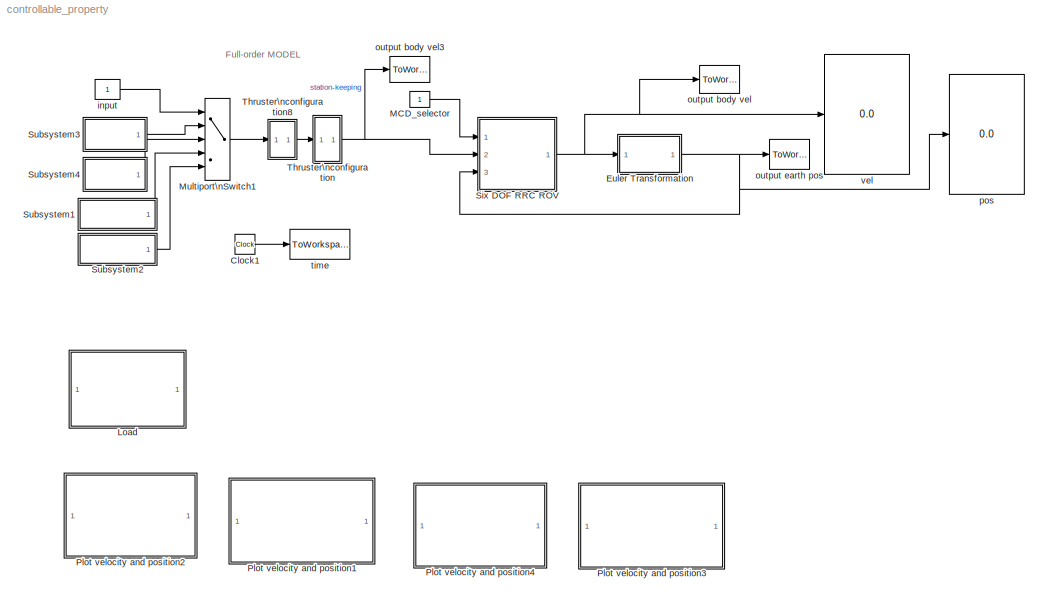
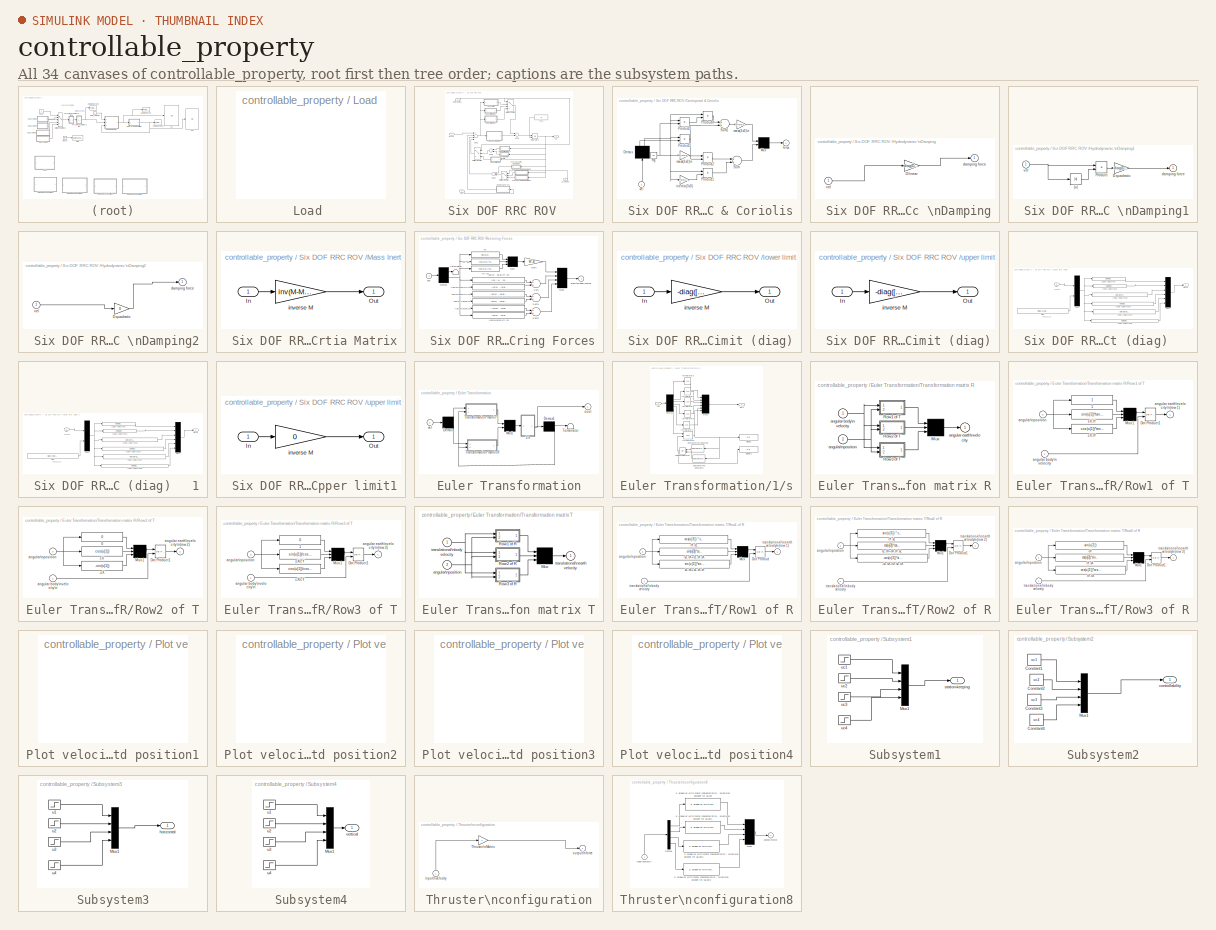
[diagram: thumbnail index - all 34 canvases of the model, root first then tree order]
MODEL controllable_property
KIND model
BLOCK [SubSystem]  Load  
  AncestorBlock = rov_design_analysis/ROV Controller\nDesign\nApplications/ Load RRCROV2 parameters
  MaskDisplay = disp('Double-click \\n to \\n Load the\\n RRCROV\\n parameters')
  MaskIconFrame = on
  MaskIconOpaque = on
  MaskIconRotate = none
  MaskIconUnits = autoscale
  MinAlgLoopOccurrences = off
  OpenFcn = \nclc                                                  \ncd <path> ;\nload rrcrovf;                                        \ncd <path> ;
  Ports = []
  RTWSystemCode = Auto
  TreatAsAtomicUnit = off
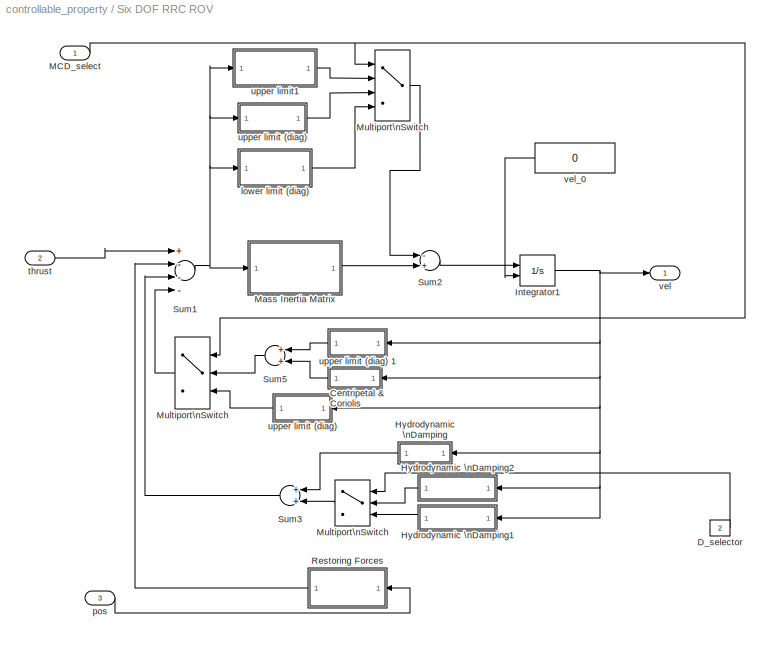
BLOCK [SubSystem]  Six DOF RRC ROV   
  MaskDisplay = disp('ROV')\nimage(imread('/rov_design_analysis/fig/ROVRRC2.jpg'));\ncolor('white');port_label('input',2,'thrust')\ncolor('white');port_label('input',1,'MCD_select')\ncolor('white');port_label('input',3,'pos')\ncolor('white');port_label('output',1,'vel')\ncolor('white');port_label('output',2,'Inv_MC')
  MaskIconFrame = on
  MaskIconOpaque = off
  MaskIconRotate = none
  MaskIconUnits = autoscale
  MinAlgLoopOccurrences = off
  Ports = [3, 1]
  RTWSystemCode = Auto
  TreatAsAtomicUnit = off
BLOCK [SubSystem]  Six DOF RRC ROV   /Centripetal & Coriolis
  AncestorBlock = rov_design_analysis/ROV\nModels/1. Six DOF RRC ROV II/Centripetal & Coriolis
  MaskDisplay = disp('C')
  MaskIconFrame = on
  MaskIconOpaque = on
  MaskIconRotate = none
  MaskIconUnits = autoscale
  MinAlgLoopOccurrences = off
  Ports = [1, 1]
  RTWSystemCode = Auto
  TreatAsAtomicUnit = off
BLOCK [Demux]  Six DOF RRC ROV   /Centripetal & Coriolis/Demux
  Outputs = 2
  Ports = [1, 2]
BLOCK [Mux]  Six DOF RRC ROV   /Centripetal & Coriolis/Mux
  Inputs = 2
  Ports = [2, 1]
BLOCK [Product]  Six DOF RRC ROV   /Centripetal & Coriolis/Product1
  Ports = [2, 1]
BLOCK [Product]  Six DOF RRC ROV   /Centripetal & Coriolis/Product2
  Ports = [2, 1]
BLOCK [Product]  Six DOF RRC ROV   /Centripetal & Coriolis/Product3
  Ports = [2, 1]
BLOCK [Product]  Six DOF RRC ROV   /Centripetal & Coriolis/Product4
  Ports = [2, 1]
BLOCK [Product]  Six DOF RRC ROV   /Centripetal & Coriolis/Product5
  Ports = [2, 1]
BLOCK [Constant]  Six DOF RRC ROV   /Centripetal & Coriolis/Rg
  Value = rg
BLOCK [Sum]  Six DOF RRC ROV   /Centripetal & Coriolis/Sum
  Ports = [2, 1]
BLOCK [Sum]  Six DOF RRC ROV   /Centripetal & Coriolis/Sum1
  Ports = [2, 1]
BLOCK [Outport]  Six DOF RRC ROV   /Centripetal & Coriolis/force
  BusOutputAsStruct = off
  IconDisplay = Port number
  InitialOutput = 0
BLOCK [Gain]  Six DOF RRC ROV   /Centripetal & Coriolis/inertia(3x3)
  Gain = I*eye(3)+[Xudot 0 0;0 Yvdot 0;0 0 Zwdot]
  Multiplication = Matrix(K*u)
BLOCK [Gain]  Six DOF RRC ROV   /Centripetal & Coriolis/mass(3x3)\n
  Gain = m*eye(3)+[Xudot 0 0;0 Yvdot 0;0 0 Zwdot]
  Multiplication = Matrix(K*u)
BLOCK [Gain]  Six DOF RRC ROV   /Centripetal & Coriolis/mass(3x3)\n  
  Gain = m*eye(3)+[Xudot 0 0;0 Yvdot 0;0 0 Zwdot]
  Multiplication = Matrix(K*u)
BLOCK [Inport]  Six DOF RRC ROV   /Centripetal & Coriolis/vel
  IconDisplay = Port number
  LatchInput = off
  Port = 1
BLOCK [Constant]  Six DOF RRC ROV   /D_selector
  Value = 2
BLOCK [SubSystem]  Six DOF RRC ROV   /Hydrodynamic \nDamping
  MaskDisplay = disp('D')
  MaskIconFrame = on
  MaskIconOpaque = on
  MaskIconRotate = none
  MaskIconUnits = autoscale
  MinAlgLoopOccurrences = off
  Ports = [1, 1]
  RTWSystemCode = Auto
  TreatAsAtomicUnit = off
BLOCK [Gain]  Six DOF RRC ROV   /Hydrodynamic \nDamping/D linear
  Gain = -diag(DQL)
BLOCK [Outport]  Six DOF RRC ROV   /Hydrodynamic \nDamping/damping force
  BusOutputAsStruct = off
  IconDisplay = Port number
  InitialOutput = 0
BLOCK [Inport]  Six DOF RRC ROV   /Hydrodynamic \nDamping/vel
  IconDisplay = Port number
  LatchInput = off
  Port = 1
BLOCK [SubSystem]  Six DOF RRC ROV   /Hydrodynamic \nDamping1
  MaskDisplay = disp('perturb \\nDamping')
  MaskIconFrame = on
  MaskIconOpaque = on
  MaskIconRotate = none
  MaskIconUnits = autoscale
  MinAlgLoopOccurrences = off
  Ports = [1, 1]
  RTWSystemCode = Auto
  TreatAsAtomicUnit = off
BLOCK [Gain]  Six DOF RRC ROV   /Hydrodynamic \nDamping1/D quadratic
  Gain = -diag(DQ)
BLOCK [Product]  Six DOF RRC ROV   /Hydrodynamic \nDamping1/Product
  Ports = [2, 1]
BLOCK [Outport]  Six DOF RRC ROV   /Hydrodynamic \nDamping1/damping force
  BusOutputAsStruct = off
  IconDisplay = Port number
  InitialOutput = 0
BLOCK [Inport]  Six DOF RRC ROV   /Hydrodynamic \nDamping1/vel
  IconDisplay = Port number
  LatchInput = off
  Port = 1
BLOCK [Abs]  Six DOF RRC ROV   /Hydrodynamic \nDamping1/|u|
BLOCK [SubSystem]  Six DOF RRC ROV   /Hydrodynamic \nDamping2
  MaskDisplay = disp('Zero Perturb')
  MaskIconFrame = on
  MaskIconOpaque = on
  MaskIconRotate = none
  MaskIconUnits = autoscale
  MinAlgLoopOccurrences = off
  Ports = [1, 1]
  RTWSystemCode = Auto
  TreatAsAtomicUnit = off
BLOCK [Gain]  Six DOF RRC ROV   /Hydrodynamic \nDamping2/D quadratic
  Gain = 0
BLOCK [Outport]  Six DOF RRC ROV   /Hydrodynamic \nDamping2/damping force
  BusOutputAsStruct = off
  IconDisplay = Port number
  InitialOutput = 0
BLOCK [Inport]  Six DOF RRC ROV   /Hydrodynamic \nDamping2/vel
  IconDisplay = Port number
  LatchInput = off
  Port = 1
BLOCK [Integrator]  Six DOF RRC ROV   /Integrator1
  InitialConditionSource = external
  Ports = [2, 1]
BLOCK [Inport]  Six DOF RRC ROV   /MCD_select
  IconDisplay = Port number
  LatchInput = off
  Port = 1
BLOCK [SubSystem]  Six DOF RRC ROV   /Mass Inertia Matrix
  MaskDisplay = disp('inv(MRB+MA)')
  MaskIconFrame = on
  MaskIconOpaque = on
  MaskIconRotate = none
  MaskIconUnits = autoscale
  MinAlgLoopOccurrences = off
  Ports = [1, 1]
  RTWSystemCode = Auto
  TreatAsAtomicUnit = off
BLOCK [Inport]  Six DOF RRC ROV   /Mass Inertia Matrix/In
  IconDisplay = Port number
  LatchInput = off
  Port = 1
BLOCK [Outport]  Six DOF RRC ROV   /Mass Inertia Matrix/Out
  BusOutputAsStruct = off
  IconDisplay = Port number
BLOCK [Gain]  Six DOF RRC ROV   /Mass Inertia Matrix/inverse M
  Gain = inv(M-Ma)
  Multiplication = Matrix(K*u)
BLOCK [MultiPortSwitch]  Six DOF RRC ROV   /Multiport\nSwitch
  InputSameDT = off
  Inputs = 3
  Ports = [4, 1]
  SaturateOnIntegerOverflow = off
BLOCK [MultiPortSwitch]  Six DOF RRC ROV   /Multiport\nSwitch  
  InputSameDT = off
  Inputs = 2
  Ports = [3, 1]
  SaturateOnIntegerOverflow = off
BLOCK [MultiPortSwitch]  Six DOF RRC ROV   /Multiport\nSwitch    
  InputSameDT = off
  Inputs = 2
  Ports = [3, 1]
  SaturateOnIntegerOverflow = off
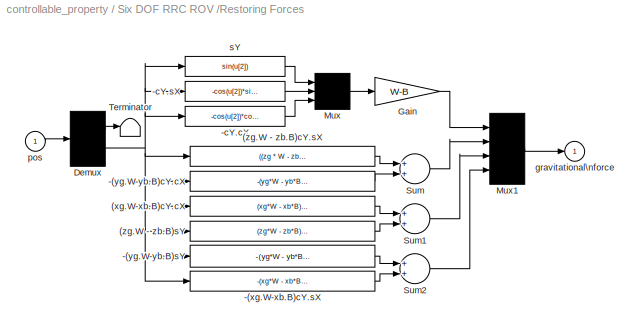
BLOCK [SubSystem]  Six DOF RRC ROV   /Restoring Forces
  MaskDisplay = disp('Restoring\\nForce')
  MaskIconFrame = on
  MaskIconOpaque = on
  MaskIconRotate = none
  MaskIconUnits = autoscale
  MinAlgLoopOccurrences = off
  Ports = [1, 1]
  RTWSystemCode = Auto
  TreatAsAtomicUnit = off
BLOCK [Fcn]  Six DOF RRC ROV   /Restoring Forces/(xg.W-xb.B)cY.cX
  Expr = (xg*W - xb*B)*cos(u[2])*cos(u[1])
BLOCK [Fcn]  Six DOF RRC ROV   /Restoring Forces/(zg.W - zb.B)cY.sX
  Expr = ((zg * W - zb * B) * cos(u[2])) * sin(u[1])
BLOCK [Fcn]  Six DOF RRC ROV   /Restoring Forces/(zg.W - zb.B)sY
  Expr = (zg*W - zb*B)*sin(u[2])
BLOCK [Fcn]  Six DOF RRC ROV   /Restoring Forces/-(xg.W-xb.B)cY.sX
  Expr = -(xg*W - xb*B)*cos(u[2])*sin(u[1])
BLOCK [Fcn]  Six DOF RRC ROV   /Restoring Forces/-(yg.W-yb.B)cY.cX
  Expr = -(yg*W - yb*B)*cos(u[2])*cos(u[1])
BLOCK [Fcn]  Six DOF RRC ROV   /Restoring Forces/-(yg.W-yb.B)sY
  Expr = -(yg*W - yb*B)*sin(u[2])
BLOCK [Fcn]  Six DOF RRC ROV   /Restoring Forces/-cY.cX
  Expr = -cos(u[2])*cos(u[1])
BLOCK [Fcn]  Six DOF RRC ROV   /Restoring Forces/-cY.sX
  Expr = -cos(u[2])*sin(u[1])
BLOCK [Demux]  Six DOF RRC ROV   /Restoring Forces/Demux
  Outputs = 2
  Ports = [1, 2]
BLOCK [Gain]  Six DOF RRC ROV   /Restoring Forces/Gain
  Gain = W-B
BLOCK [Mux]  Six DOF RRC ROV   /Restoring Forces/Mux
  Inputs = 3
  Ports = [3, 1]
BLOCK [Mux]  Six DOF RRC ROV   /Restoring Forces/Mux1
  Ports = [4, 1]
BLOCK [Sum]  Six DOF RRC ROV   /Restoring Forces/Sum
  Ports = [2, 1]
BLOCK [Sum]  Six DOF RRC ROV   /Restoring Forces/Sum1
  Ports = [2, 1]
BLOCK [Sum]  Six DOF RRC ROV   /Restoring Forces/Sum2
  Ports = [2, 1]
BLOCK [Terminator]  Six DOF RRC ROV   /Restoring Forces/Terminator
BLOCK [Outport]  Six DOF RRC ROV   /Restoring Forces/gravitational\nforce
  BusOutputAsStruct = off
  IconDisplay = Port number
  InitialOutput = 0
BLOCK [Inport]  Six DOF RRC ROV   /Restoring Forces/pos
  IconDisplay = Port number
  LatchInput = off
  Port = 1
BLOCK [Fcn]  Six DOF RRC ROV   /Restoring Forces/sY
  Expr = sin(u[2])
BLOCK [Sum]  Six DOF RRC ROV   /Sum1
  Inputs = +---
  Ports = [4, 1]
BLOCK [Sum]  Six DOF RRC ROV   /Sum2
  Inputs = -+
  Ports = [2, 1]
BLOCK [Sum]  Six DOF RRC ROV   /Sum3
  Ports = [2, 1]
BLOCK [Sum]  Six DOF RRC ROV   /Sum5
  Ports = [2, 1]
BLOCK [SubSystem]  Six DOF RRC ROV   /lower limit (diag)
  MaskDisplay = disp('Perturb MA')
  MaskIconFrame = on
  MaskIconOpaque = on
  MaskIconRotate = none
  MaskIconUnits = autoscale
  MinAlgLoopOccurrences = off
  Ports = [1, 1]
  RTWSystemCode = Auto
  TreatAsAtomicUnit = off
BLOCK [Inport]  Six DOF RRC ROV   /lower limit (diag)/In
  IconDisplay = Port number
  LatchInput = off
  Port = 1
BLOCK [Outport]  Six DOF RRC ROV   /lower limit (diag)/Out
  BusOutputAsStruct = off
  IconDisplay = Port number
BLOCK [Gain]  Six DOF RRC ROV   /lower limit (diag)/inverse M
  Gain = -diag([21.1403-21.0981 51.7012-51.0026 92.451-91.837 3.6191-3.576 2.6427-2.7687 2.3033-2.3493])
  Multiplication = Matrix(K*u)
BLOCK [Inport]  Six DOF RRC ROV   /pos 
  IconDisplay = Port number
  LatchInput = off
  Port = 3
BLOCK [Inport]  Six DOF RRC ROV   /thrust 
  IconDisplay = Port number
  LatchInput = off
  Port = 2
BLOCK [SubSystem]  Six DOF RRC ROV   /upper limit (diag)
  MaskDisplay = disp('Perturb MA')
  MaskIconFrame = on
  MaskIconOpaque = on
  MaskIconRotate = none
  MaskIconUnits = autoscale
  MinAlgLoopOccurrences = off
  Ports = [1, 1]
  RTWSystemCode = Auto
  TreatAsAtomicUnit = off
BLOCK [SubSystem]  Six DOF RRC ROV   /upper limit (diag)   
  MaskDisplay = disp('Perturb CA')
  MaskIconFrame = on
  MaskIconOpaque = on
  MaskIconRotate = none
  MaskIconUnits = autoscale
  MinAlgLoopOccurrences = off
  Ports = [1, 1]
  RTWSystemCode = Auto
  TreatAsAtomicUnit = off
BLOCK [Fcn]  Six DOF RRC ROV   /upper limit (diag)   /(zg.W - zb.B)cY.sX
  Expr = -u[9]*u[3]*u[5]+u[8]*u[2]*u[6]
BLOCK [Fcn]  Six DOF RRC ROV   /upper limit (diag)   /(zg.W - zb.B)cY.sX1
  Expr = u[9]*u[3]*u[4]-u[7]*u[1]*u[6]
BLOCK [Fcn]  Six DOF RRC ROV   /upper limit (diag)   /(zg.W - zb.B)cY.sX2
  Expr = -u[8]*u[2]*u[4]+u[7]*u[1]*u[5]
BLOCK [Fcn]  Six DOF RRC ROV   /upper limit (diag)   /(zg.W - zb.B)cY.sX3
  Expr = -u[9]*u[3]*u[2]+u[8]*u[2]*u[3]-u[12]*u[6]*u[5]+u[11]*u[5]*u[6]
BLOCK [Fcn]  Six DOF RRC ROV   /upper limit (diag)   /(zg.W - zb.B)cY.sX4
  Expr = u[9]*u[3]*u[1]-u[7]*u[1]*u[3]+u[6]*u[12]*u[4]-u[4]*u[10]*u[6]
BLOCK [Fcn]  Six DOF RRC ROV   /upper limit (diag)   /(zg.W - zb.B)cY.sX5
  Expr = -u[8]*u[2]*u[1]+u[7]*u[1]*u[2]-u[11]*u[5]*u[4]+u[10]*u[4]*u[5]
BLOCK [Mux]  Six DOF RRC ROV   /upper limit (diag)   /Mux1
  Inputs = 6
  Ports = [6, 1]
BLOCK [Mux]  Six DOF RRC ROV   /upper limit (diag)   /Mux3
  Inputs = 2
  Ports = [2, 1]
BLOCK [Constant]  Six DOF RRC ROV   /upper limit (diag)   /Rg1
  Value = [MaU(1)  MaU(2)  MaU(3)  MaU(4)  MaU(5)  MaU(6) ]'
BLOCK [Outport]  Six DOF RRC ROV   /upper limit (diag)   /force
  BusOutputAsStruct = off
  IconDisplay = Port number
BLOCK [Inport]  Six DOF RRC ROV   /upper limit (diag)   /vel
  IconDisplay = Port number
  LatchInput = off
  Port = 1
BLOCK [SubSystem]  Six DOF RRC ROV   /upper limit (diag)   1
  MaskDisplay = disp('CA')
  MaskIconFrame = on
  MaskIconOpaque = on
  MaskIconRotate = none
  MaskIconUnits = autoscale
  MinAlgLoopOccurrences = off
  Ports = [1, 1]
  RTWSystemCode = Auto
  TreatAsAtomicUnit = off
BLOCK [Fcn]  Six DOF RRC ROV   /upper limit (diag)   1/(zg.W - zb.B)cY.sX
  Expr = -u[9]*u[3]*u[5]+u[8]*u[2]*u[6]
BLOCK [Fcn]  Six DOF RRC ROV   /upper limit (diag)   1/(zg.W - zb.B)cY.sX1
  Expr = u[9]*u[3]*u[4]-u[7]*u[1]*u[6]
BLOCK [Fcn]  Six DOF RRC ROV   /upper limit (diag)   1/(zg.W - zb.B)cY.sX2
  Expr = -u[8]*u[2]*u[4]+u[7]*u[1]*u[5]
BLOCK [Fcn]  Six DOF RRC ROV   /upper limit (diag)   1/(zg.W - zb.B)cY.sX3
  Expr = -u[9]*u[3]*u[2]+u[8]*u[2]*u[3]-u[12]*u[6]*u[5]+u[11]*u[5]*u[6]
BLOCK [Fcn]  Six DOF RRC ROV   /upper limit (diag)   1/(zg.W - zb.B)cY.sX4
  Expr = u[9]*u[3]*u[1]-u[7]*u[1]*u[3]+u[6]*u[12]*u[4]-u[4]*u[10]*u[6]
BLOCK [Fcn]  Six DOF RRC ROV   /upper limit (diag)   1/(zg.W - zb.B)cY.sX5
  Expr = -u[8]*u[2]*u[1]+u[7]*u[1]*u[2]-u[11]*u[5]*u[4]+u[10]*u[4]*u[5]
BLOCK [Mux]  Six DOF RRC ROV   /upper limit (diag)   1/Mux1
  Inputs = 6
  Ports = [6, 1]
BLOCK [Mux]  Six DOF RRC ROV   /upper limit (diag)   1/Mux3
  Inputs = 2
  Ports = [2, 1]
BLOCK [Constant]  Six DOF RRC ROV   /upper limit (diag)   1/Rg1
  Value = [Ma(1)  Ma(2)  Ma(3)  Ma(4)  Ma(5)  Ma(6) ]'
BLOCK [Outport]  Six DOF RRC ROV   /upper limit (diag)   1/force
  BusOutputAsStruct = off
  IconDisplay = Port number
BLOCK [Inport]  Six DOF RRC ROV   /upper limit (diag)   1/vel
  IconDisplay = Port number
  LatchInput = off
  Port = 1
BLOCK [Inport]  Six DOF RRC ROV   /upper limit (diag)/In
  IconDisplay = Port number
  LatchInput = off
  Port = 1
BLOCK [Outport]  Six DOF RRC ROV   /upper limit (diag)/Out
  BusOutputAsStruct = off
  IconDisplay = Port number
BLOCK [Gain]  Six DOF RRC ROV   /upper limit (diag)/inverse M
  Gain = -diag([21.724-21.1403 51.7013-51.7012 94.3-92.451 4.2176-3.6191 7.1148-2.6427 4.7673-2.3033])
  Multiplication = Matrix(K*u)
BLOCK [SubSystem]  Six DOF RRC ROV   /upper limit1
  MaskDisplay = disp('Zero Perturb')
  MaskIconFrame = on
  MaskIconOpaque = on
  MaskIconRotate = none
  MaskIconUnits = autoscale
  MinAlgLoopOccurrences = off
  Ports = [1, 1]
  RTWSystemCode = Auto
  TreatAsAtomicUnit = off
BLOCK [Inport]  Six DOF RRC ROV   /upper limit1/In
  IconDisplay = Port number
  LatchInput = off
  Port = 1
BLOCK [Outport]  Six DOF RRC ROV   /upper limit1/Out
  BusOutputAsStruct = off
  IconDisplay = Port number
BLOCK [Gain]  Six DOF RRC ROV   /upper limit1/inverse M
  Gain = 0
  Multiplication = Matrix(K*u)
BLOCK [Outport]  Six DOF RRC ROV   /vel
  BusOutputAsStruct = off
  IconDisplay = Port number
BLOCK [Constant]  Six DOF RRC ROV   /vel_0
  OutDataTypeMode = double
  Value = 0
BLOCK [Clock] Clock1
  Decimation = 10
BLOCK [SubSystem] Euler Transformation
  AncestorBlock = rov_design_analysis/Scope\nUtilities/Euler Transformation
  MinAlgLoopOccurrences = off
  Ports = [1, 1]
  RTWSystemCode = Auto
  TreatAsAtomicUnit = off
BLOCK [SubSystem] Euler Transformation/1//s
  MinAlgLoopOccurrences = off
  Ports = [1, 1]
  RTWSystemCode = Auto
  TreatAsAtomicUnit = off
BLOCK [Reference] Euler Transformation/1//s/Compare\nTo Constant  REF=simulink/Logic and Bit\nOperations/Compare\nTo Constant
  LogicOutDataTypeMode = boolean
  Ports = [1, 1]
  ShowPortLabels = on
  SourceBlock = simulink/Logic and Bit\nOperations/Compare\nTo Constant
  SourceType = Compare To Constant
  const = -pi*2
  relop = <=
BLOCK [Reference] Euler Transformation/1//s/Compare\nTo Constant1  REF=simulink/Logic and Bit\nOperations/Compare\nTo Constant
  LogicOutDataTypeMode = boolean
  Ports = [1, 1]
  ShowPortLabels = on
  SourceBlock = simulink/Logic and Bit\nOperations/Compare\nTo Constant
  SourceType = Compare To Constant
  const = pi*2
  relop = >=
BLOCK [Demux] Euler Transformation/1//s/Demux2
  Outputs = 6
  Ports = [1, 6]
BLOCK [Display] Euler Transformation/1//s/Display
  Decimation = 1
  Ports = [1]
BLOCK [Display] Euler Transformation/1//s/Display1
  Decimation = 1
  Ports = [1]
BLOCK [Inport] Euler Transformation/1//s/In1
  IconDisplay = Port number
  LatchInput = off
  Port = 1
BLOCK [Integrator] Euler Transformation/1//s/Intregrator1
  Ports = [1, 1]
BLOCK [Integrator] Euler Transformation/1//s/Intregrator2
  Ports = [1, 1]
BLOCK [Integrator] Euler Transformation/1//s/Intregrator3
  Ports = [1, 1]
BLOCK [Integrator] Euler Transformation/1//s/Intregrator4
  Ports = [1, 1]
BLOCK [Integrator] Euler Transformation/1//s/Intregrator5
  Ports = [1, 1]
BLOCK [Integrator] Euler Transformation/1//s/Intregrator6
  ExternalReset = rising
  InitialCondition = 0.5
  Ports = [2, 1]
BLOCK [Logic] Euler Transformation/1//s/Logical\nOperator
  AllPortsSameDT = off
  Operator = OR
  OutDataTypeMode = Boolean
  Ports = [2, 1]
BLOCK [Mux] Euler Transformation/1//s/Mux2
  Inputs = 6
  Ports = [6, 1]
BLOCK [Outport] Euler Transformation/1//s/Out1
  BusOutputAsStruct = off
  IconDisplay = Port number
BLOCK [Demux] Euler Transformation/Demux
  Outputs = 2
  Ports = [1, 2]
BLOCK [Demux] Euler Transformation/Demux1
  Outputs = 2
  Ports = [1, 2]
BLOCK [Mux] Euler Transformation/Mux1
  Inputs = 2
  Ports = [2, 1]
BLOCK [Terminator] Euler Transformation/Terminator
BLOCK [SubSystem] Euler Transformation/Transformation matrix R
  MaskDisplay = disp('Transformation R')
  MaskIconFrame = on
  MaskIconOpaque = on
  MaskIconRotate = none
  MaskIconUnits = autoscale
  MinAlgLoopOccurrences = off
  Ports = [2, 1]
  RTWSystemCode = Auto
  TreatAsAtomicUnit = off
BLOCK [Mux] Euler Transformation/Transformation matrix R/Mux
  Inputs = 3
  Ports = [3, 1]
BLOCK [SubSystem] Euler Transformation/Transformation matrix R/Row1 of T
  MaskDisplay = disp('Row 1')
  MaskIconFrame = on
  MaskIconOpaque = on
  MaskIconRotate = none
  MaskIconUnits = autoscale
  MinAlgLoopOccurrences = off
  Ports = [2, 1]
  RTWSystemCode = Auto
  TreatAsAtomicUnit = off
BLOCK [Fcn] Euler Transformation/Transformation matrix R/Row1 of T/1
  Expr = 1
BLOCK [Reference] Euler Transformation/Transformation matrix R/Row1 of T/Dot Product1  REF=simulink/Math\nOperations/Dot Product
  DoSatur = off
  InputSameDT = on
  LockScale = off
  OutDataType = sfix(16)
  OutScaling = 2^-10
  OutputDataTypeScalingMode = Inherit via internal rule
  Ports = [2, 1]
  RndMeth = Floor
  SourceBlock = simulink/Math\nOperations/Dot Product
  SourceType = Dot Product
BLOCK [Mux] Euler Transformation/Transformation matrix R/Row1 of T/Mux1
  Inputs = 3
  Ports = [3, 1]
BLOCK [Inport] Euler Transformation/Transformation matrix R/Row1 of T/angular body\n velocity
  IconDisplay = Port number
  LatchInput = off
  Port = 1
BLOCK [Outport] Euler Transformation/Transformation matrix R/Row1 of T/angular earth\nvelocity\n(row 1)
  BusOutputAsStruct = off
  IconDisplay = Port number
BLOCK [Inport] Euler Transformation/Transformation matrix R/Row1 of T/angular\nposition
  IconDisplay = Port number
  LatchInput = off
  Port = 2
BLOCK [Fcn] Euler Transformation/Transformation matrix R/Row1 of T/cX.tY
  Expr = cos(u[1])*tan(u[2])
BLOCK [Fcn] Euler Transformation/Transformation matrix R/Row1 of T/sX.tY
  Expr = sin(u[1])*tan(u[2])
BLOCK [SubSystem] Euler Transformation/Transformation matrix R/Row2 of T
  MaskDisplay = disp('Row 2')
  MaskIconFrame = on
  MaskIconOpaque = on
  MaskIconRotate = none
  MaskIconUnits = autoscale
  MinAlgLoopOccurrences = off
  Ports = [2, 1]
  RTWSystemCode = Auto
  TreatAsAtomicUnit = off
BLOCK [Fcn] Euler Transformation/Transformation matrix R/Row2 of T/-sX
  Expr = -sin(u[1])
BLOCK [Fcn] Euler Transformation/Transformation matrix R/Row2 of T/0
  Expr = 0
BLOCK [Reference] Euler Transformation/Transformation matrix R/Row2 of T/Dot Product1  REF=simulink/Math\nOperations/Dot Product
  DoSatur = off
  InputSameDT = on
  LockScale = off
  OutDataType = sfix(16)
  OutScaling = 2^-10
  OutputDataTypeScalingMode = Inherit via internal rule
  Ports = [2, 1]
  RndMeth = Floor
  SourceBlock = simulink/Math\nOperations/Dot Product
  SourceType = Dot Product
BLOCK [Mux] Euler Transformation/Transformation matrix R/Row2 of T/Mux1
  Inputs = 3
  Ports = [3, 1]
BLOCK [Inport] Euler Transformation/Transformation matrix R/Row2 of T/angular body\nvelocity\n
  IconDisplay = Port number
  LatchInput = off
  Port = 1
BLOCK [Outport] Euler Transformation/Transformation matrix R/Row2 of T/angular earth\nvelocity\n(row 2)
  BusOutputAsStruct = off
  IconDisplay = Port number
BLOCK [Inport] Euler Transformation/Transformation matrix R/Row2 of T/angular\nposition
  IconDisplay = Port number
  LatchInput = off
  Port = 2
BLOCK [Fcn] Euler Transformation/Transformation matrix R/Row2 of T/cX
  Expr = cos(u[1])
BLOCK [SubSystem] Euler Transformation/Transformation matrix R/Row3 of T
  MaskDisplay = disp('Row 3')
  MaskIconFrame = on
  MaskIconOpaque = on
  MaskIconRotate = none
  MaskIconUnits = autoscale
  MinAlgLoopOccurrences = off
  Ports = [2, 1]
  RTWSystemCode = Auto
  TreatAsAtomicUnit = off
BLOCK [Fcn] Euler Transformation/Transformation matrix R/Row3 of T/1
  Expr = 0
BLOCK [Reference] Euler Transformation/Transformation matrix R/Row3 of T/Dot Product1  REF=simulink/Math\nOperations/Dot Product
  DoSatur = off
  InputSameDT = on
  LockScale = off
  OutDataType = sfix(16)
  OutScaling = 2^-10
  OutputDataTypeScalingMode = Inherit via internal rule
  Ports = [2, 1]
  RndMeth = Floor
  SourceBlock = simulink/Math\nOperations/Dot Product
  SourceType = Dot Product
BLOCK [Mux] Euler Transformation/Transformation matrix R/Row3 of T/Mux1
  Inputs = 3
  Ports = [3, 1]
BLOCK [Inport] Euler Transformation/Transformation matrix R/Row3 of T/angular body\nvelocity\n
  IconDisplay = Port number
  LatchInput = off
  Port = 1
BLOCK [Outport] Euler Transformation/Transformation matrix R/Row3 of T/angular earth\nvelocity\n(row 3)
  BusOutputAsStruct = off
  IconDisplay = Port number
BLOCK [Inport] Euler Transformation/Transformation matrix R/Row3 of T/angular\nposition
  IconDisplay = Port number
  LatchInput = off
  Port = 2
BLOCK [Fcn] Euler Transformation/Transformation matrix R/Row3 of T/cX//cY
  Expr = cos(u[1])/cos(u[2])
BLOCK [Fcn] Euler Transformation/Transformation matrix R/Row3 of T/sX//cY
  Expr = sin(u[1])/cos(u[2])
BLOCK [Inport] Euler Transformation/Transformation matrix R/angular body\n velocity
  IconDisplay = Port number
  LatchInput = off
  Port = 1
BLOCK [Outport] Euler Transformation/Transformation matrix R/angular earth\nvelocity
  BusOutputAsStruct = off
  IconDisplay = Port number
BLOCK [Inport] Euler Transformation/Transformation matrix R/angular\nposition
  IconDisplay = Port number
  LatchInput = off
  Port = 2
BLOCK [SubSystem] Euler Transformation/Transformation matrix T
  MaskDisplay = disp('Transformation T')
  MaskIconFrame = on
  MaskIconOpaque = on
  MaskIconRotate = none
  MaskIconUnits = autoscale
  MinAlgLoopOccurrences = off
  Ports = [2, 1]
  RTWSystemCode = Auto
  TreatAsAtomicUnit = off
BLOCK [Mux] Euler Transformation/Transformation matrix T/Mux
  Inputs = 3
  Ports = [3, 1]
BLOCK [SubSystem] Euler Transformation/Transformation matrix T/Row1 of R
  MaskDisplay = disp('Row 1')
  MaskIconFrame = on
  MaskIconOpaque = on
  MaskIconRotate = none
  MaskIconUnits = autoscale
  MinAlgLoopOccurrences = off
  Ports = [2, 1]
  RTWSystemCode = Auto
  TreatAsAtomicUnit = off
BLOCK [Fcn] Euler Transformation/Transformation matrix T/Row1 of R/-sZ.cX+cZ.sY.sX
  Expr = -sin(u[3])*cos(u[1]) + cos(u[3])*sin(u[2])*sin(u[1])
BLOCK [Reference] Euler Transformation/Transformation matrix T/Row1 of R/Dot Product  REF=simulink/Math\nOperations/Dot Product
  DoSatur = off
  InputSameDT = on
  LockScale = off
  OutDataType = sfix(16)
  OutScaling = 2^-10
  OutputDataTypeScalingMode = Inherit via internal rule
  Ports = [2, 1]
  RndMeth = Floor
  SourceBlock = simulink/Math\nOperations/Dot Product
  SourceType = Dot Product
BLOCK [Mux] Euler Transformation/Transformation matrix T/Row1 of R/Mux
  Inputs = 3
  Ports = [3, 1]
BLOCK [Inport] Euler Transformation/Transformation matrix T/Row1 of R/angular\nposition
  IconDisplay = Port number
  LatchInput = off
  Port = 2
BLOCK [Fcn] Euler Transformation/Transformation matrix T/Row1 of R/cY.cZ
  Expr = cos(u[3]) * cos(u[2])
BLOCK [Fcn] Euler Transformation/Transformation matrix T/Row1 of R/sZ.sX+cZ.cX.sY
  Expr = sin(u[3])*sin(u[1]) + cos(u[3])*cos(u[1])*sin(u[2])
BLOCK [Inport] Euler Transformation/Transformation matrix T/Row1 of R/translational\nbody velocity
  IconDisplay = Port number
  LatchInput = off
  Port = 1
BLOCK [Outport] Euler Transformation/Transformation matrix T/Row1 of R/translational\nearth velocity\n(row 1)
  BusOutputAsStruct = off
  IconDisplay = Port number
BLOCK [SubSystem] Euler Transformation/Transformation matrix T/Row2 of R
  MaskDisplay = disp('Row 2')
  MaskIconFrame = on
  MaskIconOpaque = on
  MaskIconRotate = none
  MaskIconUnits = autoscale
  MinAlgLoopOccurrences = off
  Ports = [2, 1]
  RTWSystemCode = Auto
  TreatAsAtomicUnit = off
BLOCK [Fcn] Euler Transformation/Transformation matrix T/Row2 of R/-cZ.sX+sY.sZ.cX
  Expr = -cos(u[3])*sin(u[1]) + sin(u[2])*sin(u[3])*cos(u[1])
BLOCK [Reference] Euler Transformation/Transformation matrix T/Row2 of R/Dot Product1  REF=simulink/Math\nOperations/Dot Product
  DoSatur = off
  InputSameDT = on
  LockScale = off
  OutDataType = sfix(16)
  OutScaling = 2^-10
  OutputDataTypeScalingMode = Inherit via internal rule
  Ports = [2, 1]
  RndMeth = Floor
  SourceBlock = simulink/Math\nOperations/Dot Product
  SourceType = Dot Product
BLOCK [Mux] Euler Transformation/Transformation matrix T/Row2 of R/Mux1
  Inputs = 3
  Ports = [3, 1]
BLOCK [Inport] Euler Transformation/Transformation matrix T/Row2 of R/angular\nposition
  IconDisplay = Port number
  LatchInput = off
  Port = 2
BLOCK [Fcn] Euler Transformation/Transformation matrix T/Row2 of R/cY.sZ
  Expr = sin(u[3]) * cos(u[2])
BLOCK [Fcn] Euler Transformation/Transformation matrix T/Row2 of R/cZ.cX+sX.sY.sZ
  Expr = cos(u[3])*cos(u[1]) + sin(u[1])*sin(u[2])*sin(u[3])
BLOCK [Inport] Euler Transformation/Transformation matrix T/Row2 of R/translational\nbody velocity
  IconDisplay = Port number
  LatchInput = off
  Port = 1
BLOCK [Outport] Euler Transformation/Transformation matrix T/Row2 of R/translational\nearth velocity\n(row 2)
  BusOutputAsStruct = off
  IconDisplay = Port number
BLOCK [SubSystem] Euler Transformation/Transformation matrix T/Row3 of R
  MaskDisplay = disp('Row 3')
  MaskIconFrame = on
  MaskIconOpaque = on
  MaskIconRotate = none
  MaskIconUnits = autoscale
  MinAlgLoopOccurrences = off
  Ports = [2, 1]
  RTWSystemCode = Auto
  TreatAsAtomicUnit = off
BLOCK [Fcn] Euler Transformation/Transformation matrix T/Row3 of R/-sY
  Expr = -sin(u[2])
BLOCK [Reference] Euler Transformation/Transformation matrix T/Row3 of R/Dot Product1  REF=simulink/Math\nOperations/Dot Product
  DoSatur = off
  InputSameDT = on
  LockScale = off
  OutDataType = sfix(16)
  OutScaling = 2^-10
  OutputDataTypeScalingMode = Inherit via internal rule
  Ports = [2, 1]
  RndMeth = Floor
  SourceBlock = simulink/Math\nOperations/Dot Product
  SourceType = Dot Product
BLOCK [Mux] Euler Transformation/Transformation matrix T/Row3 of R/Mux1
  Inputs = 3
  Ports = [3, 1]
BLOCK [Inport] Euler Transformation/Transformation matrix T/Row3 of R/angular\nposition
  IconDisplay = Port number
  LatchInput = off
  Port = 2
BLOCK [Fcn] Euler Transformation/Transformation matrix T/Row3 of R/cY.cX
  Expr = cos(u[2])*cos(u[1])
BLOCK [Fcn] Euler Transformation/Transformation matrix T/Row3 of R/cY.sX
  Expr = cos(u[2])*sin(u[1])
BLOCK [Inport] Euler Transformation/Transformation matrix T/Row3 of R/translational\nbody velocity
  IconDisplay = Port number
  LatchInput = off
  Port = 1
BLOCK [Outport] Euler Transformation/Transformation matrix T/Row3 of R/translational\nearth velocity\n(row 3)
  BusOutputAsStruct = off
  IconDisplay = Port number
  InitialOutput = 0
BLOCK [Inport] Euler Transformation/Transformation matrix T/angular\nposition
  IconDisplay = Port number
  LatchInput = off
  Port = 2
BLOCK [Inport] Euler Transformation/Transformation matrix T/translational\nbody velocity
  IconDisplay = Port number
  LatchInput = off
  Port = 1
BLOCK [Outport] Euler Transformation/Transformation matrix T/translational\nearth velocity
  BusOutputAsStruct = off
  IconDisplay = Port number
  InitialOutput = 0
BLOCK [Outport] Euler Transformation/eout
  BusOutputAsStruct = off
  IconDisplay = Port number
  InitialOutput = 0
BLOCK [Inport] Euler Transformation/vel
  IconDisplay = Port number
  LatchInput = off
  Port = 1
BLOCK [Constant] MCD_selector
BLOCK [MultiPortSwitch] Multiport\nSwitch1
  InputSameDT = off
  Ports = [5, 1]
  SaturateOnIntegerOverflow = off
BLOCK [SubSystem] Plot velocity and position1
  AncestorBlock = rov_design_analysis/ROV Controller\nDesign\nApplications/Plot velocity and position
  MaskDisplay = disp('2b) Double-click \\n to \\n check \\n unactuated states \\n (during sway)')
  MaskIconFrame = on
  MaskIconOpaque = on
  MaskIconRotate = none
  MaskIconUnits = autoscale
  MinAlgLoopOccurrences = off
  OpenFcn = clc                                                      \ncd <path> control_analy_sway
  Ports = []
  RTWSystemCode = Auto
  TreatAsAtomicUnit = off
BLOCK [SubSystem] Plot velocity and position2
  AncestorBlock = rov_design_analysis/ROV Controller\nDesign\nApplications/Plot velocity and position
  MaskDisplay = disp('2a) Double-click \\n to \\n check \\n unactuated states \\n (during surge)')
  MaskIconFrame = on
  MaskIconOpaque = on
  MaskIconRotate = none
  MaskIconUnits = autoscale
  MinAlgLoopOccurrences = off
  OpenFcn = clc                                                      \ncd <path> control_analy_surge
  Ports = []
  RTWSystemCode = Auto
  TreatAsAtomicUnit = off
BLOCK [SubSystem] Plot velocity and position3
  AncestorBlock = rov_design_analysis/ROV Controller\nDesign\nApplications/Plot velocity and position
  MaskDisplay = disp('2d) Double-click \\n to \\n check \\n unactuated states \\n (during yaw)')
  MaskIconFrame = on
  MaskIconOpaque = on
  MaskIconRotate = none
  MaskIconUnits = autoscale
  MinAlgLoopOccurrences = off
  OpenFcn = clc                                                      \ncd <path> control_analy_yaw
  Ports = []
  RTWSystemCode = Auto
  TreatAsAtomicUnit = off
BLOCK [SubSystem] Plot velocity and position4
  AncestorBlock = rov_design_analysis/ROV Controller\nDesign\nApplications/Plot velocity and position
  MaskDisplay = disp('2c) Double-click \\n to \\n check \\n unactuated states \\n (during heave)')
  MaskIconFrame = on
  MaskIconOpaque = on
  MaskIconRotate = none
  MaskIconUnits = autoscale
  MinAlgLoopOccurrences = off
  OpenFcn = clc                                                      \ncd <path> control_analy_heave
  Ports = []
  RTWSystemCode = Auto
  TreatAsAtomicUnit = off
BLOCK [SubSystem] Subsystem1
  MinAlgLoopOccurrences = off
  Ports = [0, 1]
  RTWSystemCode = Auto
  TreatAsAtomicUnit = off
BLOCK [Mux] Subsystem1/Mux1
  Ports = [4, 1]
BLOCK [Outport] Subsystem1/station-keeping
  BusOutputAsStruct = off
  IconDisplay = Port number
BLOCK [Step] Subsystem1/uc1
  SampleTime = 0
  Time = 0
BLOCK [Step] Subsystem1/uc2
  SampleTime = 0
  Time = 0
BLOCK [Step] Subsystem1/uc3
  SampleTime = 0
  Time = 0
BLOCK [Step] Subsystem1/uc4
  SampleTime = 0
  Time = 0
BLOCK [SubSystem] Subsystem2
  MinAlgLoopOccurrences = off
  Ports = [0, 1]
  RTWSystemCode = Auto
  TreatAsAtomicUnit = off
BLOCK [Constant] Subsystem2/Constant1
  Value = uc1
BLOCK [Constant] Subsystem2/Constant2
  Value = uc2
BLOCK [Constant] Subsystem2/Constant3
  Value = uc3
BLOCK [Constant] Subsystem2/Constant4
  Value = uc4
BLOCK [Mux] Subsystem2/Mux1
  Ports = [4, 1]
BLOCK [Outport] Subsystem2/controllability
  BusOutputAsStruct = off
  IconDisplay = Port number
BLOCK [SubSystem] Subsystem3
  MinAlgLoopOccurrences = off
  Ports = [0, 1]
  RTWSystemCode = Auto
  TreatAsAtomicUnit = off
BLOCK [Mux] Subsystem3/Mux1
  Ports = [4, 1]
BLOCK [Outport] Subsystem3/horizontal
  BusOutputAsStruct = off
  IconDisplay = Port number
BLOCK [Step] Subsystem3/u1
  SampleTime = 0
  Time = 0
BLOCK [Step] Subsystem3/u2
  SampleTime = 0
  Time = 0
BLOCK [Step] Subsystem3/u3
  After = 0
  SampleTime = 0
  Time = 0
BLOCK [Step] Subsystem3/u4
  After = 0
  SampleTime = 0
  Time = 0
BLOCK [SubSystem] Subsystem4
  MinAlgLoopOccurrences = off
  Ports = [0, 1]
  RTWSystemCode = Auto
  TreatAsAtomicUnit = off
BLOCK [Mux] Subsystem4/Mux1
  Ports = [4, 1]
BLOCK [Step] Subsystem4/u1
  After = 0
  SampleTime = 0
  Time = 0
BLOCK [Step] Subsystem4/u2
  After = 0
  SampleTime = 0
  Time = 0
BLOCK [Step] Subsystem4/u3
  SampleTime = 0
  Time = 0
BLOCK [Step] Subsystem4/u4
  SampleTime = 0
  Time = 0
BLOCK [Outport] Subsystem4/vertical
  BusOutputAsStruct = off
  IconDisplay = Port number
BLOCK [SubSystem] Thruster\nconfiguration
  MaskDisplay = disp('T')
  MaskIconFrame = on
  MaskIconOpaque = on
  MaskIconRotate = none
  MaskIconUnits = autoscale
  MinAlgLoopOccurrences = off
  Ports = [1, 1]
  RTWSystemCode = Auto
  TreatAsAtomicUnit = off
BLOCK [Gain] Thruster\nconfiguration/Thruster\nMatrix
  Gain = T
  Multiplication = Matrix(K*u)
BLOCK [Inport] Thruster\nconfiguration/input\nvelocity
  IconDisplay = Port number
  LatchInput = off
  Port = 1
BLOCK [Outport] Thruster\nconfiguration/output\nforce
  BusOutputAsStruct = off
  IconDisplay = Port number
  InitialOutput = 0
BLOCK [SubSystem] Thruster\nconfiguration8
  AncestorBlock = rov_design_analysis/ROV Controller\nDesign\nApplications/1. Heading autopilot/Thruster\nconfiguration
  MaskDisplay = disp('F_T')
  MaskIconFrame = on
  MaskIconOpaque = on
  MaskIconRotate = none
  MaskIconUnits = autoscale
  MinAlgLoopOccurrences = off
  Ports = [1, 1]
  RTWSystemCode = Auto
  TreatAsAtomicUnit = off
BLOCK [Reference] Thruster\nconfiguration8/3. propeller with motor characteristics - 1DoF\n(no account for ua,up)  REF=rov_design_analysis/Propeller\nModels/3. propeller with motor characteristics - 1DoF\n(no account for ua,up)
  Ports = [1, 2]
  ShowPortLabels = on
  SourceBlock = rov_design_analysis/Propeller\nModels/3. propeller with motor characteristics - 1DoF\n(no account for ua,up)
  SourceType = Propeller dynamic without considering axial velocity
BLOCK [Reference] Thruster\nconfiguration8/3. propeller with motor characteristics - 1DoF\n(no account for ua,up)1  REF=rov_design_analysis/Propeller\nModels/3. propeller with motor characteristics - 1DoF\n(no account for ua,up)
  Ports = [1, 2]
  ShowPortLabels = on
  SourceBlock = rov_design_analysis/Propeller\nModels/3. propeller with motor characteristics - 1DoF\n(no account for ua,up)
  SourceType = Propeller dynamic without considering axial velocity
BLOCK [Reference] Thruster\nconfiguration8/3. propeller with motor characteristics - 1DoF\n(no account for ua,up)2  REF=rov_design_analysis/Propeller\nModels/3. propeller with motor characteristics - 1DoF\n(no account for ua,up)
  Ports = [1, 2]
  ShowPortLabels = on
  SourceBlock = rov_design_analysis/Propeller\nModels/3. propeller with motor characteristics - 1DoF\n(no account for ua,up)
  SourceType = Propeller dynamic without considering axial velocity
BLOCK [Reference] Thruster\nconfiguration8/3. propeller with motor characteristics - 1DoF\n(no account for ua,up)3  REF=rov_design_analysis/Propeller\nModels/3. propeller with motor characteristics - 1DoF\n(no account for ua,up)
  Ports = [1, 2]
  ShowPortLabels = on
  SourceBlock = rov_design_analysis/Propeller\nModels/3. propeller with motor characteristics - 1DoF\n(no account for ua,up)
  SourceType = Propeller dynamic without considering axial velocity
BLOCK [Demux] Thruster\nconfiguration8/Demux
  DisplayOption = bar
  Ports = [1, 4]
BLOCK [Mux] Thruster\nconfiguration8/Mux1
  Ports = [4, 1]
BLOCK [Inport] Thruster\nconfiguration8/input\nvelocity
  IconDisplay = Port number
  LatchInput = off
  Port = 1
BLOCK [Outport] Thruster\nconfiguration8/output\nforce
  BusOutputAsStruct = off
  IconDisplay = Port number
  InitialOutput = 0
BLOCK [Constant] input 
BLOCK [ToWorkspace] output body vel
  MaxDataPoints = inf
  SampleTime = 1
  SaveFormat = Array
  VariableName = bout
BLOCK [ToWorkspace] output body vel3
  MaxDataPoints = inf
  SampleTime = 1
  SaveFormat = Array
  VariableName = u
BLOCK [ToWorkspace] output earth pos
  MaxDataPoints = inf
  SampleTime = 1
  SaveFormat = Array
  VariableName = eout
BLOCK [Display] pos
  Decimation = 1
  Ports = [1]
BLOCK [ToWorkspace] time
  MaxDataPoints = inf
  SampleTime = 1
  SaveFormat = Array
  VariableName = t
BLOCK [Display] vel
  Decimation = 1
  Ports = [1]
ANNOTATION (root): Full-order MODEL
ANNOTATION  Six DOF RRC ROV   /upper limit (diag)   : 1 2 3 4 5 6
ANNOTATION  Six DOF RRC ROV   /upper limit (diag)   : 7 8 9 10 11 12
ANNOTATION  Six DOF RRC ROV   /upper limit (diag)   1: 1 2 3 4 5 6
ANNOTATION  Six DOF RRC ROV   /upper limit (diag)   1: 7 8 9 10 11 12
LINE  Six DOF RRC ROV   /Centripetal & Coriolis/Demux:1 ->  Six DOF RRC ROV   /Centripetal & Coriolis/Product5:2
NET  Six DOF RRC ROV   /Centripetal & Coriolis/Demux:2 ->  Six DOF RRC ROV   /Centripetal & Coriolis/Product1:1,  Six DOF RRC ROV   /Centripetal & Coriolis/Product3:1,  Six DOF RRC ROV   /Centripetal & Coriolis/Product4:1,  Six DOF RRC ROV   /Centripetal & Coriolis/Product5:1,  Six DOF RRC ROV   /Centripetal & Coriolis/inertia(3x3):1
LINE  Six DOF RRC ROV   /Centripetal & Coriolis/Mux:1 ->  Six DOF RRC ROV   /Centripetal & Coriolis/force:1
LINE  Six DOF RRC ROV   /Centripetal & Coriolis/Product1:1 ->  Six DOF RRC ROV   /Centripetal & Coriolis/Sum:2
LINE  Six DOF RRC ROV   /Centripetal & Coriolis/Product2:1 ->  Six DOF RRC ROV   /Centripetal & Coriolis/Sum:1
LINE  Six DOF RRC ROV   /Centripetal & Coriolis/Product3:1 ->  Six DOF RRC ROV   /Centripetal & Coriolis/Product4:2
LINE  Six DOF RRC ROV   /Centripetal & Coriolis/Product4:1 ->  Six DOF RRC ROV   /Centripetal & Coriolis/Sum1:1
NET  Six DOF RRC ROV   /Centripetal & Coriolis/Product5:1 ->  Six DOF RRC ROV   /Centripetal & Coriolis/Product2:2,  Six DOF RRC ROV   /Centripetal & Coriolis/Sum1:2
NET  Six DOF RRC ROV   /Centripetal & Coriolis/Rg:1 ->  Six DOF RRC ROV   /Centripetal & Coriolis/Product3:2,  Six DOF RRC ROV   /Centripetal & Coriolis/mass(3x3)\n  :1
LINE  Six DOF RRC ROV   /Centripetal & Coriolis/Sum1:1 ->  Six DOF RRC ROV   /Centripetal & Coriolis/mass(3x3)\n:1
LINE  Six DOF RRC ROV   /Centripetal & Coriolis/Sum:1 ->  Six DOF RRC ROV   /Centripetal & Coriolis/Mux:2
LINE  Six DOF RRC ROV   /Centripetal & Coriolis/inertia(3x3):1 ->  Six DOF RRC ROV   /Centripetal & Coriolis/Product1:2
LINE  Six DOF RRC ROV   /Centripetal & Coriolis/mass(3x3)\n  :1 ->  Six DOF RRC ROV   /Centripetal & Coriolis/Product2:1
LINE  Six DOF RRC ROV   /Centripetal & Coriolis/mass(3x3)\n:1 ->  Six DOF RRC ROV   /Centripetal & Coriolis/Mux:1
LINE  Six DOF RRC ROV   /Centripetal & Coriolis/vel:1 ->  Six DOF RRC ROV   /Centripetal & Coriolis/Demux:1
LINE  Six DOF RRC ROV   /Centripetal & Coriolis:1 ->  Six DOF RRC ROV   /Sum5:2
LINE  Six DOF RRC ROV   /D_selector:1 ->  Six DOF RRC ROV   /Multiport\nSwitch    :1
LINE  Six DOF RRC ROV   /Hydrodynamic \nDamping/D linear:1 ->  Six DOF RRC ROV   /Hydrodynamic \nDamping/damping force:1
LINE  Six DOF RRC ROV   /Hydrodynamic \nDamping/vel:1 ->  Six DOF RRC ROV   /Hydrodynamic \nDamping/D linear:1
LINE  Six DOF RRC ROV   /Hydrodynamic \nDamping1/D quadratic:1 ->  Six DOF RRC ROV   /Hydrodynamic \nDamping1/damping force:1
LINE  Six DOF RRC ROV   /Hydrodynamic \nDamping1/Product:1 ->  Six DOF RRC ROV   /Hydrodynamic \nDamping1/D quadratic:1
NET  Six DOF RRC ROV   /Hydrodynamic \nDamping1/vel:1 ->  Six DOF RRC ROV   /Hydrodynamic \nDamping1/Product:1,  Six DOF RRC ROV   /Hydrodynamic \nDamping1/|u|:1
LINE  Six DOF RRC ROV   /Hydrodynamic \nDamping1/|u|:1 ->  Six DOF RRC ROV   /Hydrodynamic \nDamping1/Product:2
LINE  Six DOF RRC ROV   /Hydrodynamic \nDamping1:1 ->  Six DOF RRC ROV   /Multiport\nSwitch    :3
LINE  Six DOF RRC ROV   /Hydrodynamic \nDamping2/D quadratic:1 ->  Six DOF RRC ROV   /Hydrodynamic \nDamping2/damping force:1
LINE  Six DOF RRC ROV   /Hydrodynamic \nDamping2/vel:1 ->  Six DOF RRC ROV   /Hydrodynamic \nDamping2/D quadratic:1
LINE  Six DOF RRC ROV   /Hydrodynamic \nDamping2:1 ->  Six DOF RRC ROV   /Multiport\nSwitch    :2
LINE  Six DOF RRC ROV   /Hydrodynamic \nDamping:1 ->  Six DOF RRC ROV   /Sum3:1
NET  Six DOF RRC ROV   /Integrator1:1 ->  Six DOF RRC ROV   /Centripetal & Coriolis:1,  Six DOF RRC ROV   /Hydrodynamic \nDamping1:1,  Six DOF RRC ROV   /Hydrodynamic \nDamping2:1,  Six DOF RRC ROV   /Hydrodynamic \nDamping:1,  Six DOF RRC ROV   /upper limit (diag)   1:1,  Six DOF RRC ROV   /upper limit (diag)   :1,  Six DOF RRC ROV   /vel:1
NET  Six DOF RRC ROV   /MCD_select:1 ->  Six DOF RRC ROV   /Multiport\nSwitch  :1,  Six DOF RRC ROV   /Multiport\nSwitch:1
LINE  Six DOF RRC ROV   /Mass Inertia Matrix/In:1 ->  Six DOF RRC ROV   /Mass Inertia Matrix/inverse M:1
LINE  Six DOF RRC ROV   /Mass Inertia Matrix/inverse M:1 ->  Six DOF RRC ROV   /Mass Inertia Matrix/Out:1
LINE  Six DOF RRC ROV   /Mass Inertia Matrix:1 ->  Six DOF RRC ROV   /Sum2:2
LINE  Six DOF RRC ROV   /Multiport\nSwitch    :1 ->  Six DOF RRC ROV   /Sum3:2
LINE  Six DOF RRC ROV   /Multiport\nSwitch  :1 ->  Six DOF RRC ROV   /Sum1:4
LINE  Six DOF RRC ROV   /Multiport\nSwitch:1 ->  Six DOF RRC ROV   /Sum2:1
LINE  Six DOF RRC ROV   /Restoring Forces/(xg.W-xb.B)cY.cX:1 ->  Six DOF RRC ROV   /Restoring Forces/Sum1:1
LINE  Six DOF RRC ROV   /Restoring Forces/(zg.W - zb.B)cY.sX:1 ->  Six DOF RRC ROV   /Restoring Forces/Sum:1
LINE  Six DOF RRC ROV   /Restoring Forces/(zg.W - zb.B)sY:1 ->  Six DOF RRC ROV   /Restoring Forces/Sum1:2
LINE  Six DOF RRC ROV   /Restoring Forces/-(xg.W-xb.B)cY.sX:1 ->  Six DOF RRC ROV   /Restoring Forces/Sum2:2
LINE  Six DOF RRC ROV   /Restoring Forces/-(yg.W-yb.B)cY.cX:1 ->  Six DOF RRC ROV   /Restoring Forces/Sum:2
LINE  Six DOF RRC ROV   /Restoring Forces/-(yg.W-yb.B)sY:1 ->  Six DOF RRC ROV   /Restoring Forces/Sum2:1
LINE  Six DOF RRC ROV   /Restoring Forces/-cY.cX:1 ->  Six DOF RRC ROV   /Restoring Forces/Mux:3
LINE  Six DOF RRC ROV   /Restoring Forces/-cY.sX:1 ->  Six DOF RRC ROV   /Restoring Forces/Mux:2
LINE  Six DOF RRC ROV   /Restoring Forces/Demux:1 ->  Six DOF RRC ROV   /Restoring Forces/Terminator:1
NET  Six DOF RRC ROV   /Restoring Forces/Demux:2 ->  Six DOF RRC ROV   /Restoring Forces/(xg.W-xb.B)cY.cX:1,  Six DOF RRC ROV   /Restoring Forces/(zg.W - zb.B)cY.sX:1,  Six DOF RRC ROV   /Restoring Forces/(zg.W - zb.B)sY:1,  Six DOF RRC ROV   /Restoring Forces/-(xg.W-xb.B)cY.sX:1,  Six DOF RRC ROV   /Restoring Forces/-(yg.W-yb.B)cY.cX:1,  Six DOF RRC ROV   /Restoring Forces/-(yg.W-yb.B)sY:1,  Six DOF RRC ROV   /Restoring Forces/-cY.cX:1,  Six DOF RRC ROV   /Restoring Forces/-cY.sX:1,  Six DOF RRC ROV   /Restoring Forces/sY:1
LINE  Six DOF RRC ROV   /Restoring Forces/Gain:1 ->  Six DOF RRC ROV   /Restoring Forces/Mux1:1
LINE  Six DOF RRC ROV   /Restoring Forces/Mux1:1 ->  Six DOF RRC ROV   /Restoring Forces/gravitational\nforce:1
LINE  Six DOF RRC ROV   /Restoring Forces/Mux:1 ->  Six DOF RRC ROV   /Restoring Forces/Gain:1
LINE  Six DOF RRC ROV   /Restoring Forces/Sum1:1 ->  Six DOF RRC ROV   /Restoring Forces/Mux1:3
LINE  Six DOF RRC ROV   /Restoring Forces/Sum2:1 ->  Six DOF RRC ROV   /Restoring Forces/Mux1:4
LINE  Six DOF RRC ROV   /Restoring Forces/Sum:1 ->  Six DOF RRC ROV   /Restoring Forces/Mux1:2
LINE  Six DOF RRC ROV   /Restoring Forces/pos:1 ->  Six DOF RRC ROV   /Restoring Forces/Demux:1
LINE  Six DOF RRC ROV   /Restoring Forces/sY:1 ->  Six DOF RRC ROV   /Restoring Forces/Mux:1
LINE  Six DOF RRC ROV   /Restoring Forces:1 ->  Six DOF RRC ROV   /Sum1:2
NET  Six DOF RRC ROV   /Sum1:1 ->  Six DOF RRC ROV   /Mass Inertia Matrix:1,  Six DOF RRC ROV   /lower limit (diag):1,  Six DOF RRC ROV   /upper limit (diag):1,  Six DOF RRC ROV   /upper limit1:1
LINE  Six DOF RRC ROV   /Sum2:1 ->  Six DOF RRC ROV   /Integrator1:1
LINE  Six DOF RRC ROV   /Sum3:1 ->  Six DOF RRC ROV   /Sum1:3
LINE  Six DOF RRC ROV   /Sum5:1 ->  Six DOF RRC ROV   /Multiport\nSwitch  :2
LINE  Six DOF RRC ROV   /lower limit (diag)/In:1 ->  Six DOF RRC ROV   /lower limit (diag)/inverse M:1
LINE  Six DOF RRC ROV   /lower limit (diag)/inverse M:1 ->  Six DOF RRC ROV   /lower limit (diag)/Out:1
LINE  Six DOF RRC ROV   /lower limit (diag):1 ->  Six DOF RRC ROV   /Multiport\nSwitch:4
LINE  Six DOF RRC ROV   /pos :1 ->  Six DOF RRC ROV   /Restoring Forces:1
LINE  Six DOF RRC ROV   /thrust :1 ->  Six DOF RRC ROV   /Sum1:1
LINE  Six DOF RRC ROV   /upper limit (diag)   /(zg.W - zb.B)cY.sX1:1 ->  Six DOF RRC ROV   /upper limit (diag)   /Mux1:2
LINE  Six DOF RRC ROV   /upper limit (diag)   /(zg.W - zb.B)cY.sX2:1 ->  Six DOF RRC ROV   /upper limit (diag)   /Mux1:3
LINE  Six DOF RRC ROV   /upper limit (diag)   /(zg.W - zb.B)cY.sX3:1 ->  Six DOF RRC ROV   /upper limit (diag)   /Mux1:4
LINE  Six DOF RRC ROV   /upper limit (diag)   /(zg.W - zb.B)cY.sX4:1 ->  Six DOF RRC ROV   /upper limit (diag)   /Mux1:5
LINE  Six DOF RRC ROV   /upper limit (diag)   /(zg.W - zb.B)cY.sX5:1 ->  Six DOF RRC ROV   /upper limit (diag)   /Mux1:6
LINE  Six DOF RRC ROV   /upper limit (diag)   /(zg.W - zb.B)cY.sX:1 ->  Six DOF RRC ROV   /upper limit (diag)   /Mux1:1
LINE  Six DOF RRC ROV   /upper limit (diag)   /Mux1:1 ->  Six DOF RRC ROV   /upper limit (diag)   /force:1
NET  Six DOF RRC ROV   /upper limit (diag)   /Mux3:1 ->  Six DOF RRC ROV   /upper limit (diag)   /(zg.W - zb.B)cY.sX1:1,  Six DOF RRC ROV   /upper limit (diag)   /(zg.W - zb.B)cY.sX2:1,  Six DOF RRC ROV   /upper limit (diag)   /(zg.W - zb.B)cY.sX3:1,  Six DOF RRC ROV   /upper limit (diag)   /(zg.W - zb.B)cY.sX4:1,  Six DOF RRC ROV   /upper limit (diag)   /(zg.W - zb.B)cY.sX5:1,  Six DOF RRC ROV   /upper limit (diag)   /(zg.W - zb.B)cY.sX:1
LINE  Six DOF RRC ROV   /upper limit (diag)   /Rg1:1 ->  Six DOF RRC ROV   /upper limit (diag)   /Mux3:2
LINE  Six DOF RRC ROV   /upper limit (diag)   /vel:1 ->  Six DOF RRC ROV   /upper limit (diag)   /Mux3:1
LINE  Six DOF RRC ROV   /upper limit (diag)   1/(zg.W - zb.B)cY.sX1:1 ->  Six DOF RRC ROV   /upper limit (diag)   1/Mux1:2
LINE  Six DOF RRC ROV   /upper limit (diag)   1/(zg.W - zb.B)cY.sX2:1 ->  Six DOF RRC ROV   /upper limit (diag)   1/Mux1:3
LINE  Six DOF RRC ROV   /upper limit (diag)   1/(zg.W - zb.B)cY.sX3:1 ->  Six DOF RRC ROV   /upper limit (diag)   1/Mux1:4
LINE  Six DOF RRC ROV   /upper limit (diag)   1/(zg.W - zb.B)cY.sX4:1 ->  Six DOF RRC ROV   /upper limit (diag)   1/Mux1:5
LINE  Six DOF RRC ROV   /upper limit (diag)   1/(zg.W - zb.B)cY.sX5:1 ->  Six DOF RRC ROV   /upper limit (diag)   1/Mux1:6
LINE  Six DOF RRC ROV   /upper limit (diag)   1/(zg.W - zb.B)cY.sX:1 ->  Six DOF RRC ROV   /upper limit (diag)   1/Mux1:1
LINE  Six DOF RRC ROV   /upper limit (diag)   1/Mux1:1 ->  Six DOF RRC ROV   /upper limit (diag)   1/force:1
NET  Six DOF RRC ROV   /upper limit (diag)   1/Mux3:1 ->  Six DOF RRC ROV   /upper limit (diag)   1/(zg.W - zb.B)cY.sX1:1,  Six DOF RRC ROV   /upper limit (diag)   1/(zg.W - zb.B)cY.sX2:1,  Six DOF RRC ROV   /upper limit (diag)   1/(zg.W - zb.B)cY.sX3:1,  Six DOF RRC ROV   /upper limit (diag)   1/(zg.W - zb.B)cY.sX4:1,  Six DOF RRC ROV   /upper limit (diag)   1/(zg.W - zb.B)cY.sX5:1,  Six DOF RRC ROV   /upper limit (diag)   1/(zg.W - zb.B)cY.sX:1
LINE  Six DOF RRC ROV   /upper limit (diag)   1/Rg1:1 ->  Six DOF RRC ROV   /upper limit (diag)   1/Mux3:2
LINE  Six DOF RRC ROV   /upper limit (diag)   1/vel:1 ->  Six DOF RRC ROV   /upper limit (diag)   1/Mux3:1
LINE  Six DOF RRC ROV   /upper limit (diag)   1:1 ->  Six DOF RRC ROV   /Sum5:1
LINE  Six DOF RRC ROV   /upper limit (diag)   :1 ->  Six DOF RRC ROV   /Multiport\nSwitch  :3
LINE  Six DOF RRC ROV   /upper limit (diag)/In:1 ->  Six DOF RRC ROV   /upper limit (diag)/inverse M:1
LINE  Six DOF RRC ROV   /upper limit (diag)/inverse M:1 ->  Six DOF RRC ROV   /upper limit (diag)/Out:1
LINE  Six DOF RRC ROV   /upper limit (diag):1 ->  Six DOF RRC ROV   /Multiport\nSwitch:3
LINE  Six DOF RRC ROV   /upper limit1/In:1 ->  Six DOF RRC ROV   /upper limit1/inverse M:1
LINE  Six DOF RRC ROV   /upper limit1/inverse M:1 ->  Six DOF RRC ROV   /upper limit1/Out:1
LINE  Six DOF RRC ROV   /upper limit1:1 ->  Six DOF RRC ROV   /Multiport\nSwitch:2
LINE  Six DOF RRC ROV   /vel_0:1 ->  Six DOF RRC ROV   /Integrator1:2
NET  Six DOF RRC ROV   :1 -> Euler Transformation:1, output body vel:1, vel:1
LINE Clock1:1 -> time:1
LINE Euler Transformation/1//s/Compare\nTo Constant1:1 -> Euler Transformation/1//s/Logical\nOperator:2
LINE Euler Transformation/1//s/Compare\nTo Constant:1 -> Euler Transformation/1//s/Logical\nOperator:1
LINE Euler Transformation/1//s/Demux2:1 -> Euler Transformation/1//s/Intregrator2:1
LINE Euler Transformation/1//s/Demux2:2 -> Euler Transformation/1//s/Intregrator1:1
LINE Euler Transformation/1//s/Demux2:3 -> Euler Transformation/1//s/Intregrator3:1
LINE Euler Transformation/1//s/Demux2:4 -> Euler Transformation/1//s/Intregrator5:1
LINE Euler Transformation/1//s/Demux2:5 -> Euler Transformation/1//s/Intregrator4:1
LINE Euler Transformation/1//s/Demux2:6 -> Euler Transformation/1//s/Intregrator6:1
LINE Euler Transformation/1//s/In1:1 -> Euler Transformation/1//s/Demux2:1
LINE Euler Transformation/1//s/Intregrator1:1 -> Euler Transformation/1//s/Mux2:2
LINE Euler Transformation/1//s/Intregrator2:1 -> Euler Transformation/1//s/Mux2:1
LINE Euler Transformation/1//s/Intregrator3:1 -> Euler Transformation/1//s/Mux2:3
LINE Euler Transformation/1//s/Intregrator4:1 -> Euler Transformation/1//s/Mux2:5
LINE Euler Transformation/1//s/Intregrator5:1 -> Euler Transformation/1//s/Mux2:4
NET Euler Transformation/1//s/Intregrator6:1 -> Euler Transformation/1//s/Compare\nTo Constant1:1, Euler Transformation/1//s/Compare\nTo Constant:1, Euler Transformation/1//s/Display:1, Euler Transformation/1//s/Mux2:6
NET Euler Transformation/1//s/Logical\nOperator:1 -> Euler Transformation/1//s/Display1:1, Euler Transformation/1//s/Intregrator6:2
LINE Euler Transformation/1//s/Mux2:1 -> Euler Transformation/1//s/Out1:1
NET Euler Transformation/1//s:1 -> Euler Transformation/Demux1:1, Euler Transformation/eout:1
LINE Euler Transformation/Demux1:1 -> Euler Transformation/Terminator:1
NET Euler Transformation/Demux1:2 -> Euler Transformation/Transformation matrix R:2, Euler Transformation/Transformation matrix T:2
LINE Euler Transformation/Demux:1 -> Euler Transformation/Transformation matrix T:1
LINE Euler Transformation/Demux:2 -> Euler Transformation/Transformation matrix R:1
LINE Euler Transformation/Mux1:1 -> Euler Transformation/1//s:1
LINE Euler Transformation/Transformation matrix R/Mux:1 -> Euler Transformation/Transformation matrix R/angular earth\nvelocity:1
LINE Euler Transformation/Transformation matrix R/Row1 of T/1:1 -> Euler Transformation/Transformation matrix R/Row1 of T/Mux1:1
LINE Euler Transformation/Transformation matrix R/Row1 of T/Dot Product1:1 -> Euler Transformation/Transformation matrix R/Row1 of T/angular earth\nvelocity\n(row 1):1
LINE Euler Transformation/Transformation matrix R/Row1 of T/Mux1:1 -> Euler Transformation/Transformation matrix R/Row1 of T/Dot Product1:1
LINE Euler Transformation/Transformation matrix R/Row1 of T/angular body\n velocity:1 -> Euler Transformation/Transformation matrix R/Row1 of T/Dot Product1:2
NET Euler Transformation/Transformation matrix R/Row1 of T/angular\nposition:1 -> Euler Transformation/Transformation matrix R/Row1 of T/1:1, Euler Transformation/Transformation matrix R/Row1 of T/cX.tY:1, Euler Transformation/Transformation matrix R/Row1 of T/sX.tY:1
LINE Euler Transformation/Transformation matrix R/Row1 of T/cX.tY:1 -> Euler Transformation/Transformation matrix R/Row1 of T/Mux1:3
LINE Euler Transformation/Transformation matrix R/Row1 of T/sX.tY:1 -> Euler Transformation/Transformation matrix R/Row1 of T/Mux1:2
LINE Euler Transformation/Transformation matrix R/Row1 of T:1 -> Euler Transformation/Transformation matrix R/Mux:1
LINE Euler Transformation/Transformation matrix R/Row2 of T/-sX:1 -> Euler Transformation/Transformation matrix R/Row2 of T/Mux1:3
LINE Euler Transformation/Transformation matrix R/Row2 of T/0:1 -> Euler Transformation/Transformation matrix R/Row2 of T/Mux1:1
LINE Euler Transformation/Transformation matrix R/Row2 of T/Dot Product1:1 -> Euler Transformation/Transformation matrix R/Row2 of T/angular earth\nvelocity\n(row 2):1
LINE Euler Transformation/Transformation matrix R/Row2 of T/Mux1:1 -> Euler Transformation/Transformation matrix R/Row2 of T/Dot Product1:1
LINE Euler Transformation/Transformation matrix R/Row2 of T/angular body\nvelocity\n:1 -> Euler Transformation/Transformation matrix R/Row2 of T/Dot Product1:2
NET Euler Transformation/Transformation matrix R/Row2 of T/angular\nposition:1 -> Euler Transformation/Transformation matrix R/Row2 of T/-sX:1, Euler Transformation/Transformation matrix R/Row2 of T/0:1, Euler Transformation/Transformation matrix R/Row2 of T/cX:1
LINE Euler Transformation/Transformation matrix R/Row2 of T/cX:1 -> Euler Transformation/Transformation matrix R/Row2 of T/Mux1:2
LINE Euler Transformation/Transformation matrix R/Row2 of T:1 -> Euler Transformation/Transformation matrix R/Mux:2
LINE Euler Transformation/Transformation matrix R/Row3 of T/1:1 -> Euler Transformation/Transformation matrix R/Row3 of T/Mux1:1
LINE Euler Transformation/Transformation matrix R/Row3 of T/Dot Product1:1 -> Euler Transformation/Transformation matrix R/Row3 of T/angular earth\nvelocity\n(row 3):1
LINE Euler Transformation/Transformation matrix R/Row3 of T/Mux1:1 -> Euler Transformation/Transformation matrix R/Row3 of T/Dot Product1:1
LINE Euler Transformation/Transformation matrix R/Row3 of T/angular body\nvelocity\n:1 -> Euler Transformation/Transformation matrix R/Row3 of T/Dot Product1:2
NET Euler Transformation/Transformation matrix R/Row3 of T/angular\nposition:1 -> Euler Transformation/Transformation matrix R/Row3 of T/1:1, Euler Transformation/Transformation matrix R/Row3 of T/cX//cY:1, Euler Transformation/Transformation matrix R/Row3 of T/sX//cY:1
LINE Euler Transformation/Transformation matrix R/Row3 of T/cX//cY:1 -> Euler Transformation/Transformation matrix R/Row3 of T/Mux1:3
LINE Euler Transformation/Transformation matrix R/Row3 of T/sX//cY:1 -> Euler Transformation/Transformation matrix R/Row3 of T/Mux1:2
LINE Euler Transformation/Transformation matrix R/Row3 of T:1 -> Euler Transformation/Transformation matrix R/Mux:3
NET Euler Transformation/Transformation matrix R/angular body\n velocity:1 -> Euler Transformation/Transformation matrix R/Row1 of T:1, Euler Transformation/Transformation matrix R/Row2 of T:1, Euler Transformation/Transformation matrix R/Row3 of T:1
NET Euler Transformation/Transformation matrix R/angular\nposition:1 -> Euler Transformation/Transformation matrix R/Row1 of T:2, Euler Transformation/Transformation matrix R/Row2 of T:2, Euler Transformation/Transformation matrix R/Row3 of T:2
LINE Euler Transformation/Transformation matrix R:1 -> Euler Transformation/Mux1:2
LINE Euler Transformation/Transformation matrix T/Mux:1 -> Euler Transformation/Transformation matrix T/translational\nearth velocity:1
LINE Euler Transformation/Transformation matrix T/Row1 of R/-sZ.cX+cZ.sY.sX:1 -> Euler Transformation/Transformation matrix T/Row1 of R/Mux:2
LINE Euler Transformation/Transformation matrix T/Row1 of R/Dot Product:1 -> Euler Transformation/Transformation matrix T/Row1 of R/translational\nearth velocity\n(row 1):1
LINE Euler Transformation/Transformation matrix T/Row1 of R/Mux:1 -> Euler Transformation/Transformation matrix T/Row1 of R/Dot Product:1
NET Euler Transformation/Transformation matrix T/Row1 of R/angular\nposition:1 -> Euler Transformation/Transformation matrix T/Row1 of R/-sZ.cX+cZ.sY.sX:1, Euler Transformation/Transformation matrix T/Row1 of R/cY.cZ:1, Euler Transformation/Transformation matrix T/Row1 of R/sZ.sX+cZ.cX.sY:1
LINE Euler Transformation/Transformation matrix T/Row1 of R/cY.cZ:1 -> Euler Transformation/Transformation matrix T/Row1 of R/Mux:1
LINE Euler Transformation/Transformation matrix T/Row1 of R/sZ.sX+cZ.cX.sY:1 -> Euler Transformation/Transformation matrix T/Row1 of R/Mux:3
LINE Euler Transformation/Transformation matrix T/Row1 of R/translational\nbody velocity:1 -> Euler Transformation/Transformation matrix T/Row1 of R/Dot Product:2
LINE Euler Transformation/Transformation matrix T/Row1 of R:1 -> Euler Transformation/Transformation matrix T/Mux:1
LINE Euler Transformation/Transformation matrix T/Row2 of R/-cZ.sX+sY.sZ.cX:1 -> Euler Transformation/Transformation matrix T/Row2 of R/Mux1:3
LINE Euler Transformation/Transformation matrix T/Row2 of R/Dot Product1:1 -> Euler Transformation/Transformation matrix T/Row2 of R/translational\nearth velocity\n(row 2):1
LINE Euler Transformation/Transformation matrix T/Row2 of R/Mux1:1 -> Euler Transformation/Transformation matrix T/Row2 of R/Dot Product1:1
NET Euler Transformation/Transformation matrix T/Row2 of R/angular\nposition:1 -> Euler Transformation/Transformation matrix T/Row2 of R/-cZ.sX+sY.sZ.cX:1, Euler Transformation/Transformation matrix T/Row2 of R/cY.sZ:1, Euler Transformation/Transformation matrix T/Row2 of R/cZ.cX+sX.sY.sZ:1
LINE Euler Transformation/Transformation matrix T/Row2 of R/cY.sZ:1 -> Euler Transformation/Transformation matrix T/Row2 of R/Mux1:1
LINE Euler Transformation/Transformation matrix T/Row2 of R/cZ.cX+sX.sY.sZ:1 -> Euler Transformation/Transformation matrix T/Row2 of R/Mux1:2
LINE Euler Transformation/Transformation matrix T/Row2 of R/translational\nbody velocity:1 -> Euler Transformation/Transformation matrix T/Row2 of R/Dot Product1:2
LINE Euler Transformation/Transformation matrix T/Row2 of R:1 -> Euler Transformation/Transformation matrix T/Mux:2
LINE Euler Transformation/Transformation matrix T/Row3 of R/-sY:1 -> Euler Transformation/Transformation matrix T/Row3 of R/Mux1:1
LINE Euler Transformation/Transformation matrix T/Row3 of R/Dot Product1:1 -> Euler Transformation/Transformation matrix T/Row3 of R/translational\nearth velocity\n(row 3):1
LINE Euler Transformation/Transformation matrix T/Row3 of R/Mux1:1 -> Euler Transformation/Transformation matrix T/Row3 of R/Dot Product1:1
NET Euler Transformation/Transformation matrix T/Row3 of R/angular\nposition:1 -> Euler Transformation/Transformation matrix T/Row3 of R/-sY:1, Euler Transformation/Transformation matrix T/Row3 of R/cY.cX:1, Euler Transformation/Transformation matrix T/Row3 of R/cY.sX:1
LINE Euler Transformation/Transformation matrix T/Row3 of R/cY.cX:1 -> Euler Transformation/Transformation matrix T/Row3 of R/Mux1:3
LINE Euler Transformation/Transformation matrix T/Row3 of R/cY.sX:1 -> Euler Transformation/Transformation matrix T/Row3 of R/Mux1:2
LINE Euler Transformation/Transformation matrix T/Row3 of R/translational\nbody velocity:1 -> Euler Transformation/Transformation matrix T/Row3 of R/Dot Product1:2
LINE Euler Transformation/Transformation matrix T/Row3 of R:1 -> Euler Transformation/Transformation matrix T/Mux:3
NET Euler Transformation/Transformation matrix T/angular\nposition:1 -> Euler Transformation/Transformation matrix T/Row1 of R:2, Euler Transformation/Transformation matrix T/Row2 of R:2, Euler Transformation/Transformation matrix T/Row3 of R:2
NET Euler Transformation/Transformation matrix T/translational\nbody velocity:1 -> Euler Transformation/Transformation matrix T/Row1 of R:1, Euler Transformation/Transformation matrix T/Row2 of R:1, Euler Transformation/Transformation matrix T/Row3 of R:1
LINE Euler Transformation/Transformation matrix T:1 -> Euler Transformation/Mux1:1
LINE Euler Transformation/vel:1 -> Euler Transformation/Demux:1
NET Euler Transformation:1 ->  Six DOF RRC ROV   :3, output earth pos:1, pos:1
LINE MCD_selector:1 ->  Six DOF RRC ROV   :1
LINE Multiport\nSwitch1:1 -> Thruster\nconfiguration8:1
LINE Subsystem1/Mux1:1 -> Subsystem1/station-keeping:1
LINE Subsystem1/uc1:1 -> Subsystem1/Mux1:1
LINE Subsystem1/uc2:1 -> Subsystem1/Mux1:2
LINE Subsystem1/uc3:1 -> Subsystem1/Mux1:3
LINE Subsystem1/uc4:1 -> Subsystem1/Mux1:4
LINE Subsystem1:1 -> Multiport\nSwitch1:4
LINE Subsystem2/Constant1:1 -> Subsystem2/Mux1:1
LINE Subsystem2/Constant2:1 -> Subsystem2/Mux1:2
LINE Subsystem2/Constant3:1 -> Subsystem2/Mux1:3
LINE Subsystem2/Constant4:1 -> Subsystem2/Mux1:4
LINE Subsystem2/Mux1:1 -> Subsystem2/controllability:1
LINE Subsystem2:1 -> Multiport\nSwitch1:5
LINE Subsystem3/Mux1:1 -> Subsystem3/horizontal:1
LINE Subsystem3/u1:1 -> Subsystem3/Mux1:1
LINE Subsystem3/u2:1 -> Subsystem3/Mux1:2
LINE Subsystem3/u3:1 -> Subsystem3/Mux1:3
LINE Subsystem3/u4:1 -> Subsystem3/Mux1:4
LINE Subsystem3:1 -> Multiport\nSwitch1:2
LINE Subsystem4/Mux1:1 -> Subsystem4/vertical:1
LINE Subsystem4/u1:1 -> Subsystem4/Mux1:1
LINE Subsystem4/u2:1 -> Subsystem4/Mux1:2
LINE Subsystem4/u3:1 -> Subsystem4/Mux1:3
LINE Subsystem4/u4:1 -> Subsystem4/Mux1:4
LINE Subsystem4:1 -> Multiport\nSwitch1:3
LINE Thruster\nconfiguration/Thruster\nMatrix:1 -> Thruster\nconfiguration/output\nforce:1
LINE Thruster\nconfiguration/input\nvelocity:1 -> Thruster\nconfiguration/Thruster\nMatrix:1
LINE Thruster\nconfiguration8/3. propeller with motor characteristics - 1DoF\n(no account for ua,up)1:1 -> Thruster\nconfiguration8/Mux1:2
LINE Thruster\nconfiguration8/3. propeller with motor characteristics - 1DoF\n(no account for ua,up)2:1 -> Thruster\nconfiguration8/Mux1:3
LINE Thruster\nconfiguration8/3. propeller with motor characteristics - 1DoF\n(no account for ua,up)3:1 -> Thruster\nconfiguration8/Mux1:4
LINE Thruster\nconfiguration8/3. propeller with motor characteristics - 1DoF\n(no account for ua,up):1 -> Thruster\nconfiguration8/Mux1:1
LINE Thruster\nconfiguration8/Demux:1 -> Thruster\nconfiguration8/3. propeller with motor characteristics - 1DoF\n(no account for ua,up):1
LINE Thruster\nconfiguration8/Demux:2 -> Thruster\nconfiguration8/3. propeller with motor characteristics - 1DoF\n(no account for ua,up)1:1
LINE Thruster\nconfiguration8/Demux:3 -> Thruster\nconfiguration8/3. propeller with motor characteristics - 1DoF\n(no account for ua,up)2:1
LINE Thruster\nconfiguration8/Demux:4 -> Thruster\nconfiguration8/3. propeller with motor characteristics - 1DoF\n(no account for ua,up)3:1
LINE Thruster\nconfiguration8/Mux1:1 -> Thruster\nconfiguration8/output\nforce:1
LINE Thruster\nconfiguration8/input\nvelocity:1 -> Thruster\nconfiguration8/Demux:1
LINE Thruster\nconfiguration8:1 -> Thruster\nconfiguration:1
NET Thruster\nconfiguration:1 ->  Six DOF RRC ROV   :2, output body vel3:1
LINE input :1 -> Multiport\nSwitch1:1
note: NET lines group one-source signal fan-out (src -> all destinations, sorted); 1:1 wires keep LINE
note: 6 file-system paths scrubbed to <path> (not preserved elsewhere — flat text is the only slx artifact)
